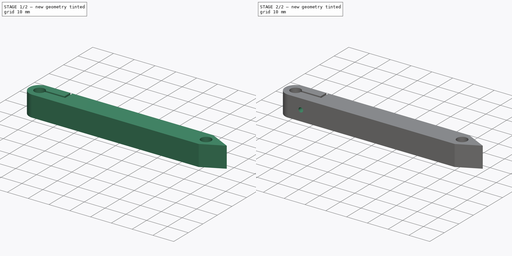
[diagram: build sequence overview — one tinted view per stage of 2, left to right]
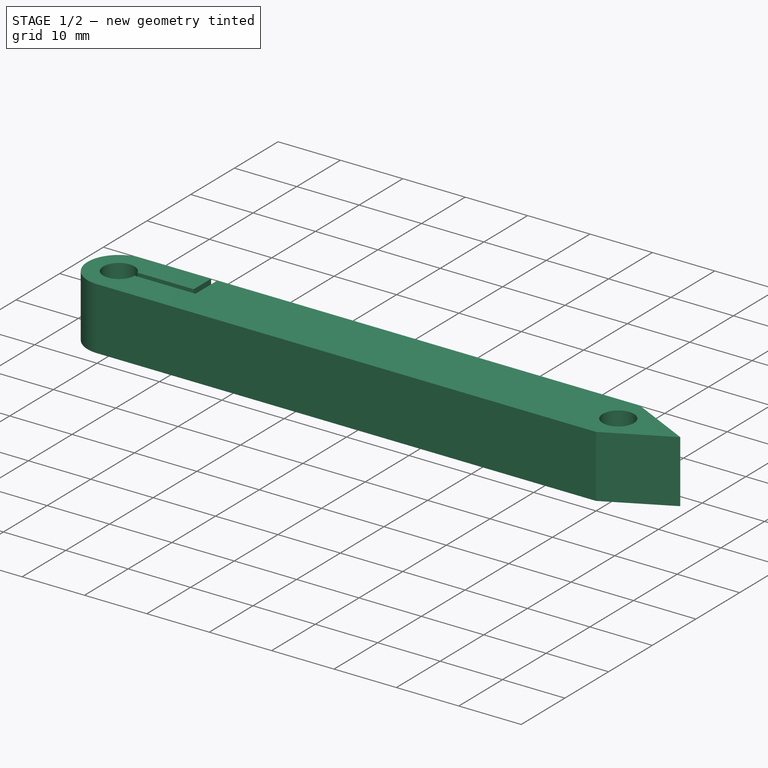
[diagram: stage 1 of 2 — iso view after this stage's code; geometry added in this stage tinted green]
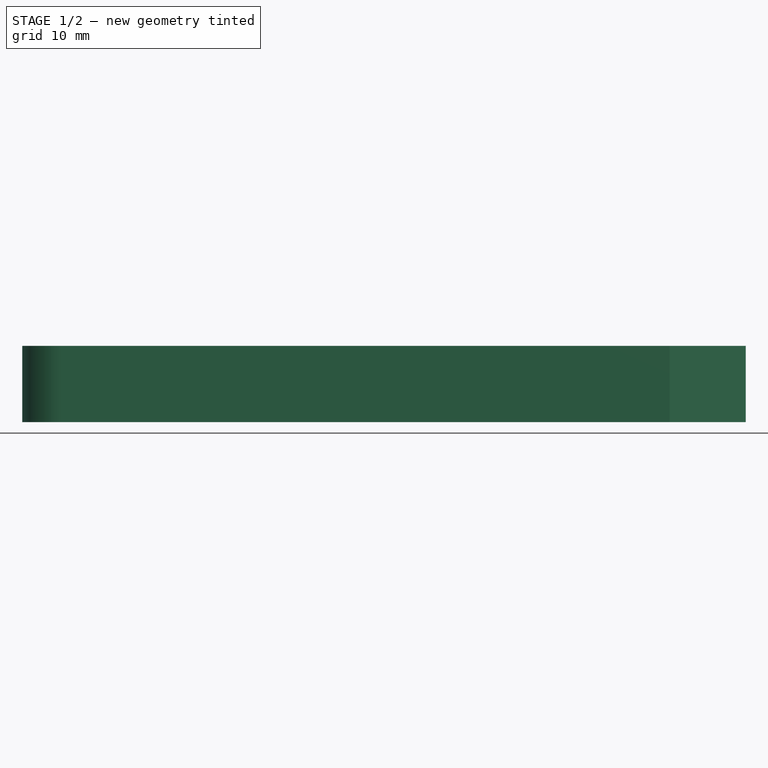
[diagram: stage 1 of 2 — front view after this stage's code; geometry added in this stage tinted green]
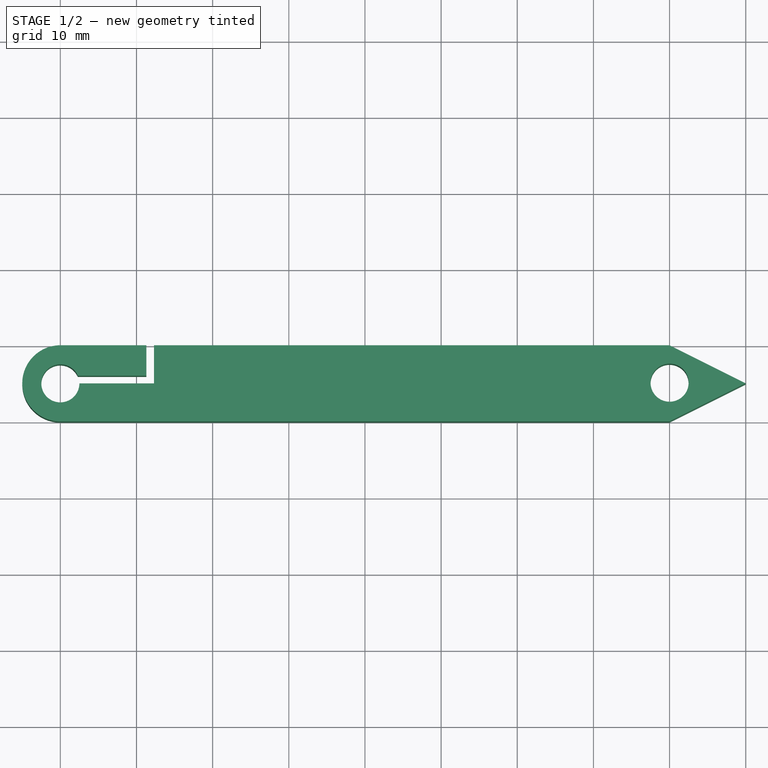
[diagram: stage 1 of 2 — top view after this stage's code; geometry added in this stage tinted green]
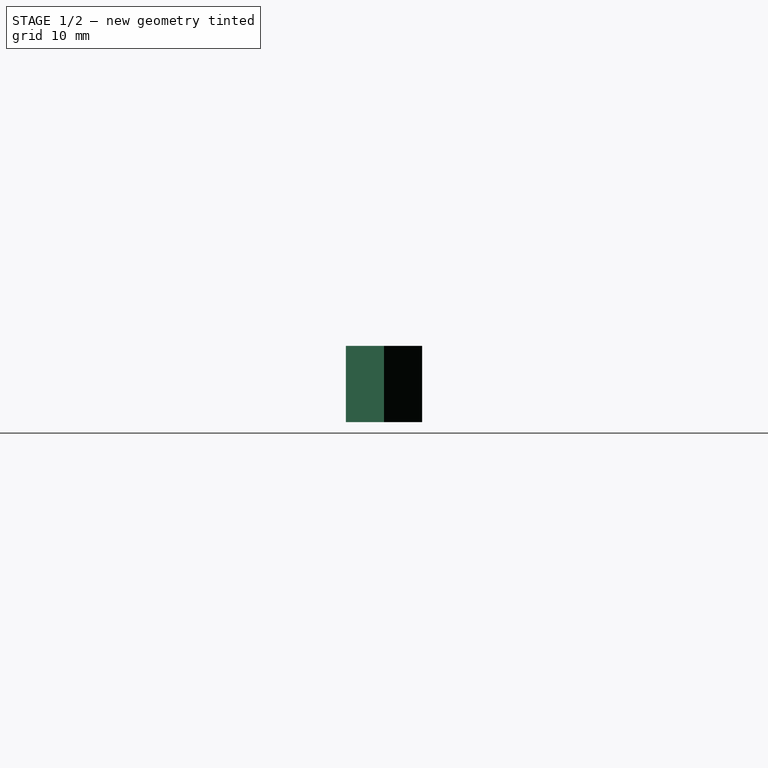
[diagram: stage 1 of 2 — right view after this stage's code; geometry added in this stage tinted green]
FCSTD DOCUMENT  (FreeCAD 0.18R16093 +53 (Git))
Label: indicator
License: All rights reserved
LicenseURL: http://en.wikipedia.org/wiki/All_rights_reserved
objects: Sketcher::SketchObject×2, PartDesign::Pad×1, PartDesign::Hole×1, PartDesign::Body×1
note: 7 computed .brp shape members not serialized (recipe doc carries the construction recipe); baked Part::Feature solids carry a one-line shape summary decoded from their .brp

FEATURE [Sketcher::SketchObject] Sketch001
  MapMode = 5
  Support = -> [XY_Plane001]
  sketch-geometry (12):
    g0: LineSegment StartX=-9e-16 StartY=-9e-16 StartZ=0 EndX=80 EndY=-9e-16 EndZ=0
    g1: LineSegment StartX=80 StartY=-9e-16 StartZ=0 EndX=90 EndY=5 EndZ=0
    g2: LineSegment StartX=90 StartY=5 StartZ=0 EndX=80 EndY=10 EndZ=0
    g3: LineSegment StartX=80 StartY=10 StartZ=0 EndX=12.2913 EndY=10 EndZ=0
    g4: ArcOfCircle CenterX=0 CenterY=5 CenterZ=0 NormalX=0 NormalY=0 NormalZ=1 AngleXU=0 Radius=5 StartAngle=1.5708 EndAngle=4.71239
    g5: LineSegment StartX=3e-16 StartY=10 StartZ=0 EndX=11.2913 EndY=10 EndZ=0
    g6: LineSegment StartX=11.2913 StartY=10 StartZ=0 EndX=11.2913 EndY=6 EndZ=0
    g7: LineSegment StartX=11.2913 StartY=6 StartZ=0 EndX=2.29129 EndY=6 EndZ=0
    g8: ArcOfCircle CenterX=-9e-16 CenterY=5 CenterZ=0 NormalX=0 NormalY=0 NormalZ=1 AngleXU=0 Radius=2.5 StartAngle=0.411517 EndAngle=6.28319
    g9: LineSegment StartX=2.5 StartY=5 StartZ=0 EndX=12.2913 EndY=5 EndZ=0
    g10: LineSegment StartX=12.2913 StartY=5 StartZ=0 EndX=12.2913 EndY=10 EndZ=0
    g11: Circle CenterX=80 CenterY=5.08741 CenterZ=0 NormalX=0 NormalY=0 NormalZ=1 AngleXU=0 Radius=2.5
  constraints (34):
    c: Horizontal(g0)
    c: Coincident(g0,g-1)
    c: DistanceX(g0,g0) = 80
    c: Vertical(g2,g0)
    c: Horizontal(g3)
    c: Coincident(g3,g2)
    c: Coincident(g1,g2)
    c: Coincident(g1,g0)
    c: DistanceY(g0,g2) = 10
    c: Coincident(g6,g7)
    c: Coincident(g9,g10)
    c: Coincident(g5,g6)
    c: Horizontal(g5)
    c: Tangent(g5,g4) = 1.5708
    c: Tangent(g4,g0) = -1.5708
    c: Coincident(g9,g8)
    c: Horizontal(g9)
    c: Vertical(g10)
    c: Coincident(g10,g3)
    c: Vertical(g6)
    c: Horizontal(g7)
    c: Radius(g8) = 2.5
    c: Vertical(g8,g0)
    c: DistanceY(g0,g8) = 5
    c: Coincident(g7,g8)
    c: Horizontal(g5,g3)
    c: DistanceX(g0,g1) = 10
    c: DistanceY(g0,g1) = 5
    c: DistanceY(g8,g7) = 1
    c: Horizontal(g8,g4)
    c: DistanceX(g5,g3) = 1
    c: DistanceX(g7,g6) = 9
    c: Radius(g11) = 2.5
    c: Vertical(g0,g11)
FEATURE [PartDesign::Pad] Pad
  Length = 10
  Length2 = 100
  Profile = -> Sketch001
  Type = 0
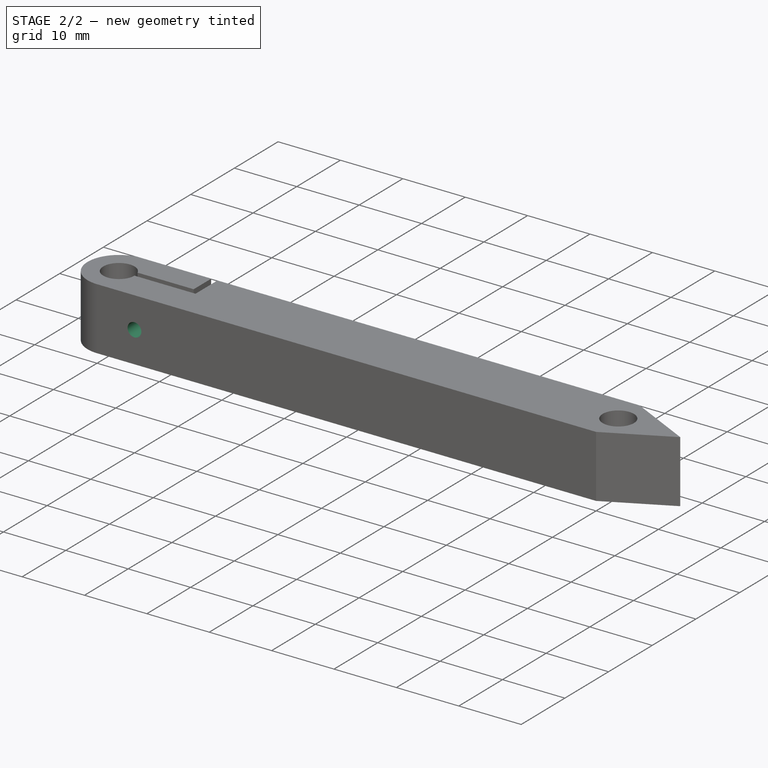
[diagram: stage 2 of 2 — iso view after this stage's code; geometry added in this stage tinted green]
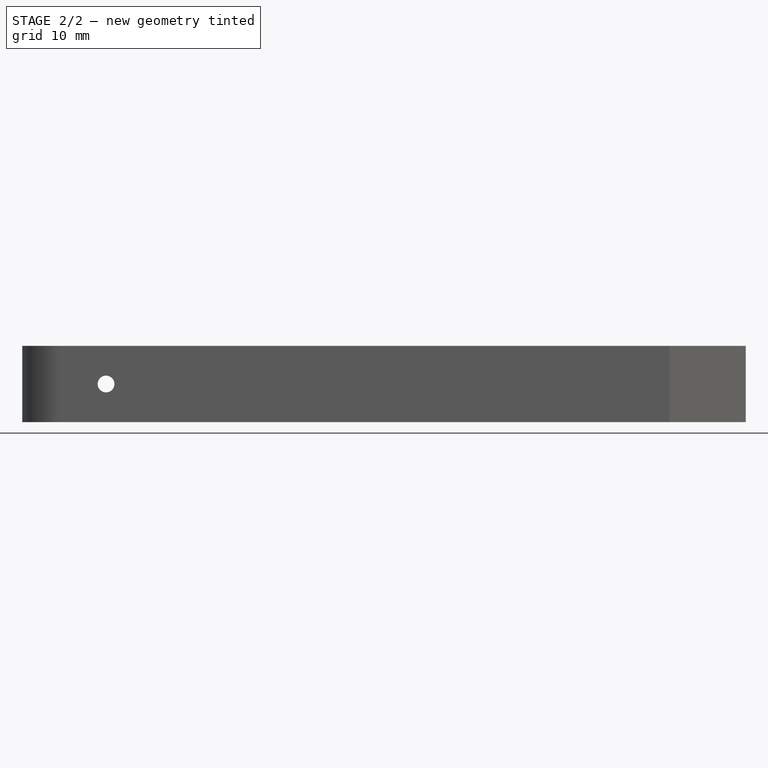
[diagram: stage 2 of 2 — front view after this stage's code; geometry added in this stage tinted green]
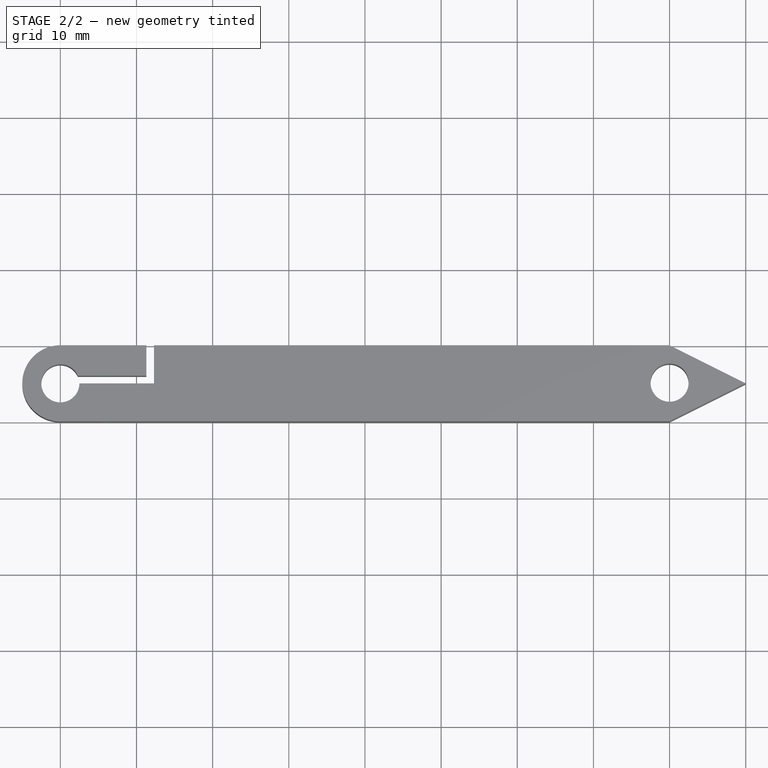
[diagram: stage 2 of 2 — top view after this stage's code; geometry added in this stage tinted green]
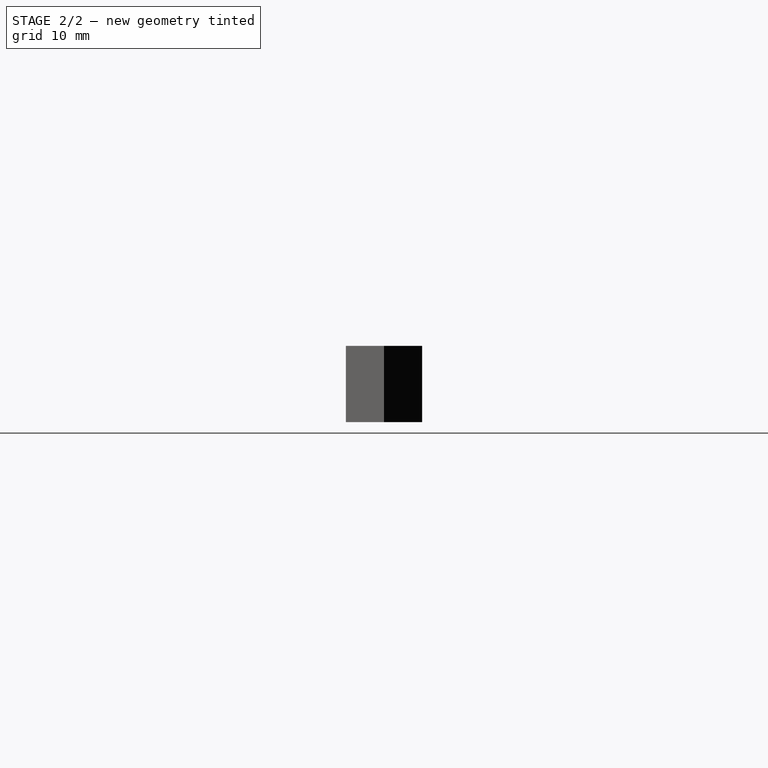
[diagram: stage 2 of 2 — right view after this stage's code; geometry added in this stage tinted green]
FEATURE [Sketcher::SketchObject] Sketch
  MapMode = 5
  Placement = pos=(0,10,0) rot=(0,0.707107,0.707107;3.14159rad)
  Support = -> [Pad]
  sketch-geometry (1):
    g0: Circle CenterX=-6 CenterY=5 CenterZ=0 NormalX=0 NormalY=0 NormalZ=1 AngleXU=0 Radius=1.5
  constraints (3):
    c: Radius(g0) = 1.5
    c: DistanceX(g0,g-1) = 6
    c: DistanceY(g-1,g0) = 5
FEATURE [PartDesign::Hole] Hole
  BaseFeature = -> Pad
  Depth = 25
  DepthType = 0
  Diameter = 2.2
  DrillPoint = 0
  DrillPointAngle = 118
  HoleCutCountersinkAngle = 90
  HoleCutDepth = 1.2
  HoleCutDiameter = 4
  HoleCutType = 1
  ModelActualThread = false
  Profile = -> Sketch
  Tapered = false
  TaperedAngle = 90
  ThreadAngle = 60
  ThreadClass = 0
  ThreadCutOffInner = 0.0433013
  ThreadCutOffOuter = 0.0866025
  ThreadDirection = 0
  ThreadFit = 0
  ThreadPitch = 0.4
  ThreadSize = 1
  ThreadType = 1
  Threaded = false
FEATURE [PartDesign::Body] Body
  Group = -> [Sketch001,Pad,Sketch,Hole]
  Origin = -> Origin001
  Tip = -> Hole
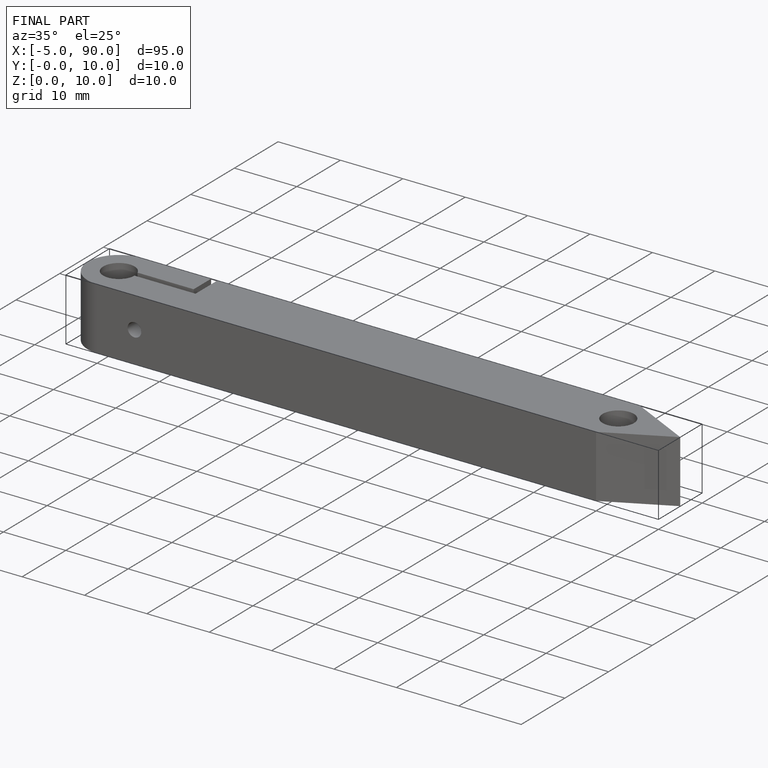
[diagram: finished part — iso view with bounding-box wireframe]
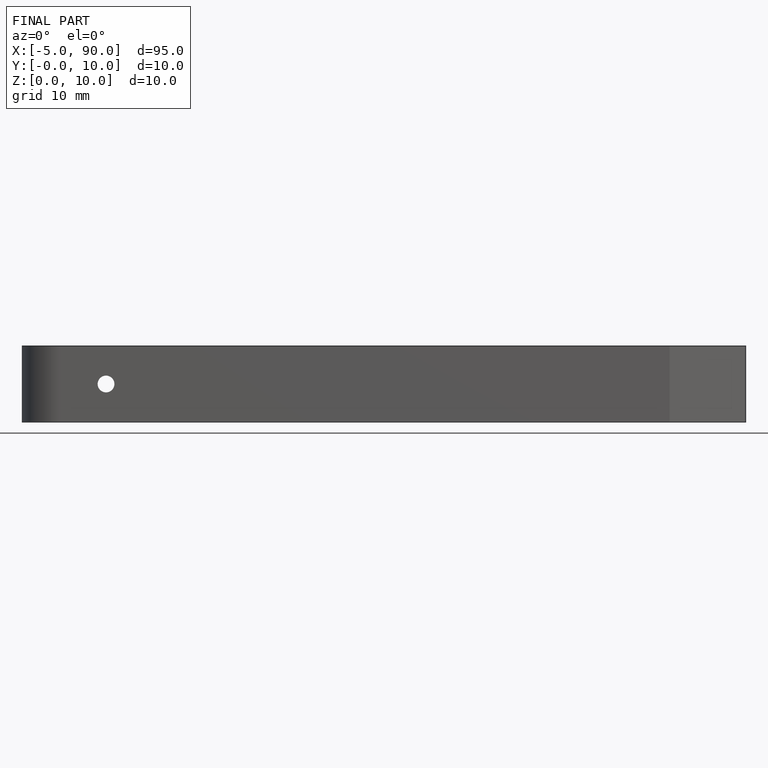
[diagram: finished part — front view with bounding-box wireframe]
